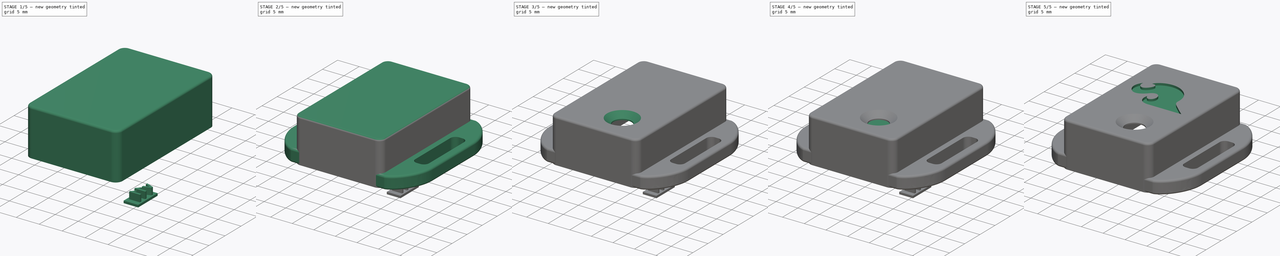
[diagram: build sequence overview — one tinted view per stage of 5, left to right]
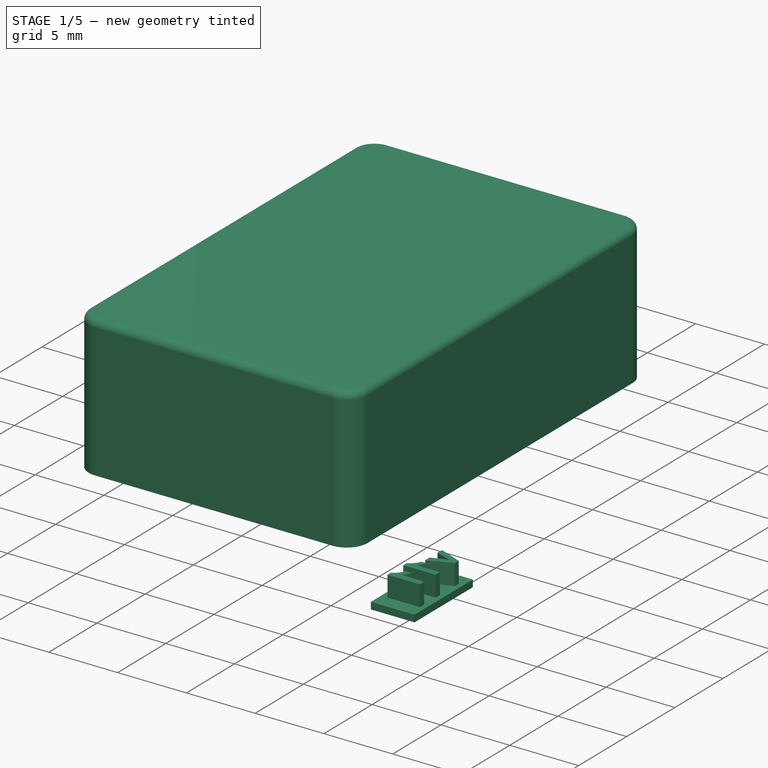
[diagram: stage 1 of 5 — iso view after this stage's code; geometry added in this stage tinted green]
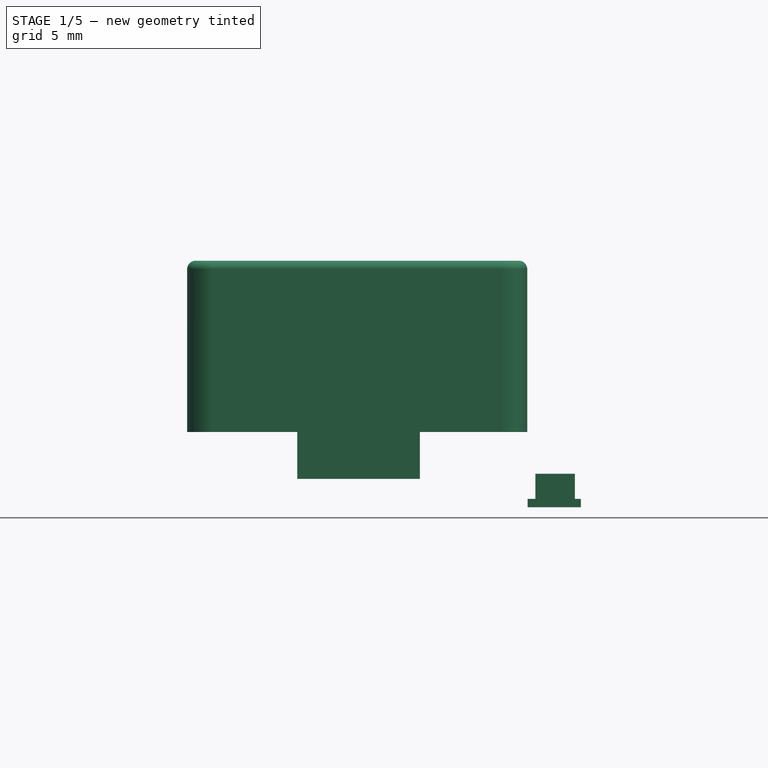
[diagram: stage 1 of 5 — front view after this stage's code; geometry added in this stage tinted green]
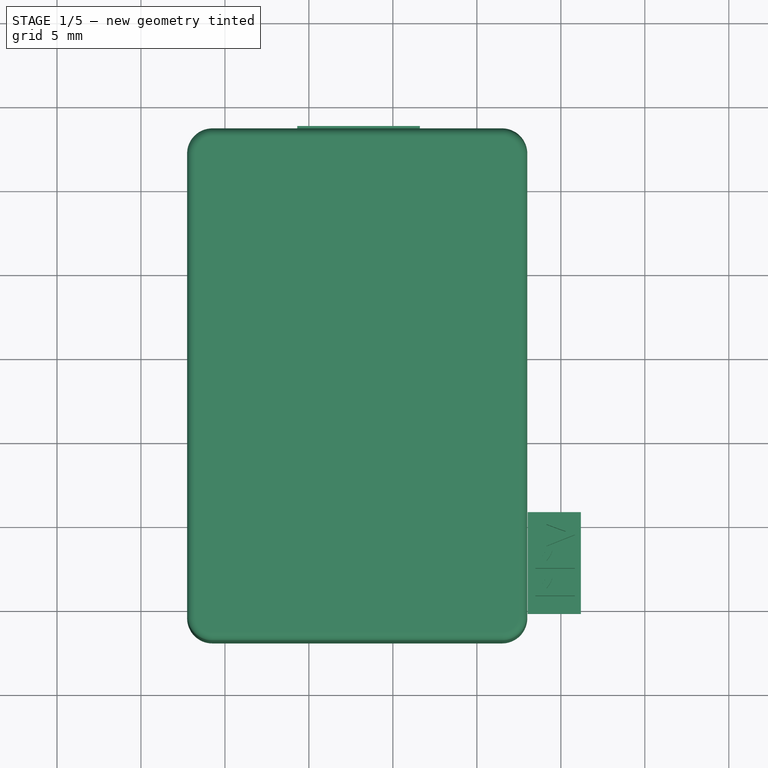
[diagram: stage 1 of 5 — top view after this stage's code; geometry added in this stage tinted green]
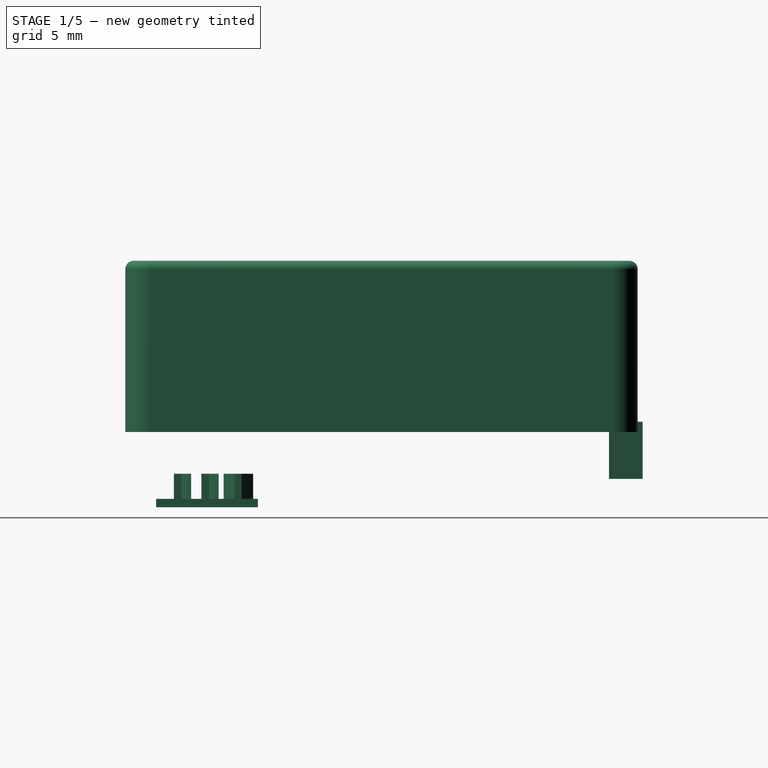
[diagram: stage 1 of 5 — right view after this stage's code; geometry added in this stage tinted green]
FCSTD DOCUMENT  (FreeCAD 0.21R33668 +26 (Git))
Label: HMV080_Enclosure_Outer_Shell
License: All rights reserved
LicenseURL: http://en.wikipedia.org/wiki/All_rights_reserved
objects: Part::FeaturePython×8, Part::Cut×8, Sketcher::SketchObject×3, PartDesign::Pad×3, PartDesign::Body×3, PartDesign::Fillet×1, Part::MultiFuse×1
note: 31 computed .brp shape members not serialized (recipe doc carries the construction recipe); baked Part::Feature solids carry a one-line shape summary decoded from their .brp

FEATURE [Sketcher::SketchObject] Sketch020
  FullyConstrained = true
  MapMode = 5
  Support = -> [XY_Plane018]
  expr: Constraints[21] = .Constraints.arc1
  expr: Constraints[22] = .Constraints.arc1
  expr: Constraints[23] = .Constraints.arc1
  sketch-geometry (12):
    g0: LineSegment StartX=-10.75 StartY=8.51 StartZ=0 EndX=6.5 EndY=8.51 EndZ=0
    g1: LineSegment StartX=8 StartY=7.01 StartZ=0 EndX=8 EndY=-20.49 EndZ=0
    g2: LineSegment StartX=6.5 StartY=-21.99 StartZ=0 EndX=-10.75 EndY=-21.99 EndZ=0
    g3: LineSegment StartX=-12.25 StartY=-20.49 StartZ=0 EndX=-12.25 EndY=7.01 EndZ=0
    g4: ArcOfCircle CenterX=-10.75 CenterY=7.01 CenterZ=0 NormalX=0 NormalY=0 NormalZ=1 AngleXU=0 Radius=1.5 StartAngle=1.5708 EndAngle=3.14159
    g5: GeomPoint X=-12.25 Y=8.51 Z=0
    g6: ArcOfCircle CenterX=6.5 CenterY=7.01 CenterZ=0 NormalX=0 NormalY=0 NormalZ=1 AngleXU=0 Radius=1.5 StartAngle=0 EndAngle=1.5708
    g7: GeomPoint X=8 Y=8.51 Z=0
    g8: ArcOfCircle CenterX=6.5 CenterY=-20.49 CenterZ=0 NormalX=0 NormalY=0 NormalZ=1 AngleXU=0 Radius=1.5 StartAngle=4.71239 EndAngle=6.28319
    g9: GeomPoint X=8 Y=-21.99 Z=0
    g10: ArcOfCircle CenterX=-10.75 CenterY=-20.49 CenterZ=0 NormalX=0 NormalY=0 NormalZ=1 AngleXU=0 Radius=1.5 StartAngle=3.14159 EndAngle=4.71239
    g11: GeomPoint X=-12.25 Y=-21.99 Z=0
  constraints (29):
    c: Horizontal(g0)
    c: Horizontal(g2)
    c: Vertical(g1)
    c: Vertical(g3)
    c: PointOnObject(g5,g0)
    c: PointOnObject(g5,g3)
    c: Tangent(g0,g4) = 1.5708
    c: Tangent(g3,g4) = 1.5708
    c: PointOnObject(g7,g0)
    c: PointOnObject(g7,g1)
    c: Tangent(g0,g6) = 1.5708
    c: Tangent(g1,g6) = 1.5708
    c: PointOnObject(g9,g1)
    c: PointOnObject(g9,g2)
    c: Tangent(g1,g8) = 1.5708
    c: Tangent(g2,g8) = 1.5708
    c: PointOnObject(g11,g2)
    c: PointOnObject(g11,g3)
    c: Tangent(g2,g10) = 1.5708
    c: Tangent(g3,g10) = 1.5708
    c: Diameter(g4) = 3  'arc1'
    c: Diameter(g6) = 3
    c: Diameter(g8) = 3
    c: Diameter(g10) = 3
    c: DistanceX(g-1,g1) = 8
    c: DistanceY(g-1,g7) = 8.51
    c: DistanceX(g5,g-1) = 12.25
    c: DistanceY(g9,g7) = 30.5
    c: DistanceX(g5,g7) = 20.25
FEATURE [PartDesign::Pad] Pad018
  Direction = (0,0,1)
  Length = 10.2
  Length2 = 10
  Profile = -> Sketch020
  ReferenceAxis = -> Sketch020 [N_Axis]
  Type = 0
FEATURE [PartDesign::Fillet] Fillet
  Base = -> Pad018 [Edge4,Edge7,Edge10,Edge13,Edge16,Edge19,Edge22,Edge24]
  BaseFeature = -> Pad018
  Radius = 0.5
  SupportTransform = false
  UseAllEdges = false
FEATURE [Part::FeaturePython] b_OS_Qwiic_Opening_cutaway_001_  label="OS_Qwiic_Opening_cutaway_001"  # a2plus imported part (geometry in sourceFile) (typed FeaturePython)
  Placement = pos=(-2.04176,8.80868,-2.78951) rot=(1,0,0;1.5708rad)
  a2p_Version = 0.4.67
  fixedPosition = false
  objectType = a2pPart
  sourceFile = .\OS_Qwiic_Opening_cutaway.FCStd
  subassemblyImport = false
  timeLastImport = 1.73645e+09
  updateColors = true
FEATURE [Part::FeaturePython] b_version_text_cutter_001_  label="version_text_cutter_001"  # a2plus imported part (geometry in sourceFile) (typed FeaturePython)
  Placement = pos=(10.8366,-14.3639,-3.98046) rot=(0.707107,-0.707107,0;3.14159rad)
  a2p_Version = 0.4.67
  fixedPosition = false
  objectType = a2pPart
  sourceFile = .\version_text_cutter.FCStd
  subassemblyImport = false
  timeLastImport = 1.73922e+09
  updateColors = true
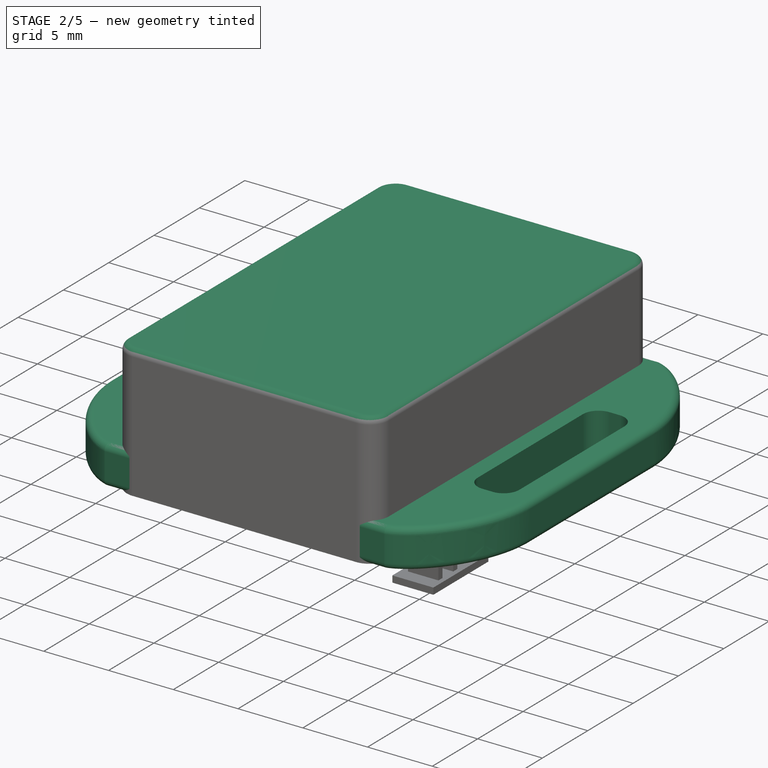
[diagram: stage 2 of 5 — iso view after this stage's code; geometry added in this stage tinted green]
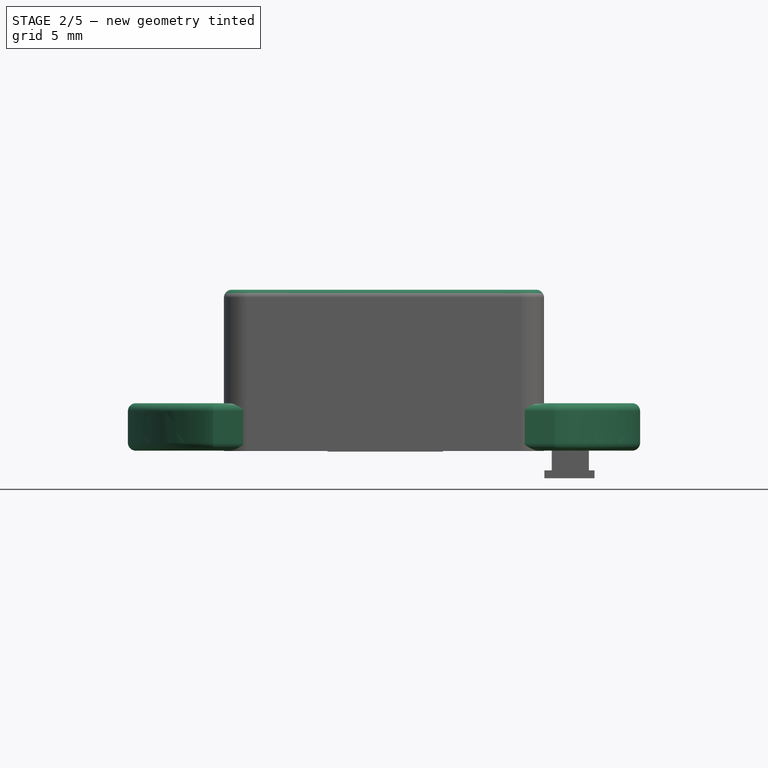
[diagram: stage 2 of 5 — front view after this stage's code; geometry added in this stage tinted green]
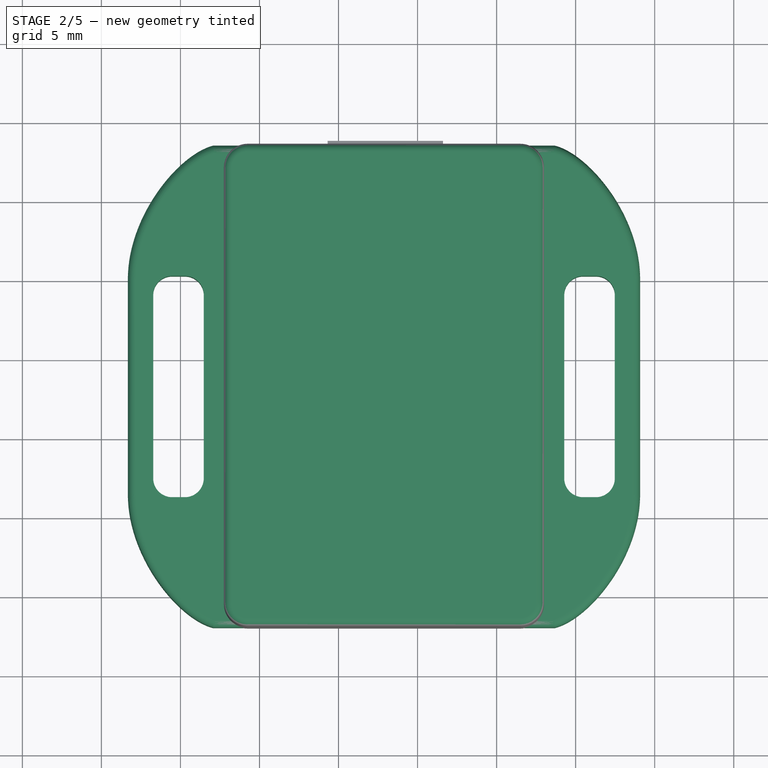
[diagram: stage 2 of 5 — top view after this stage's code; geometry added in this stage tinted green]
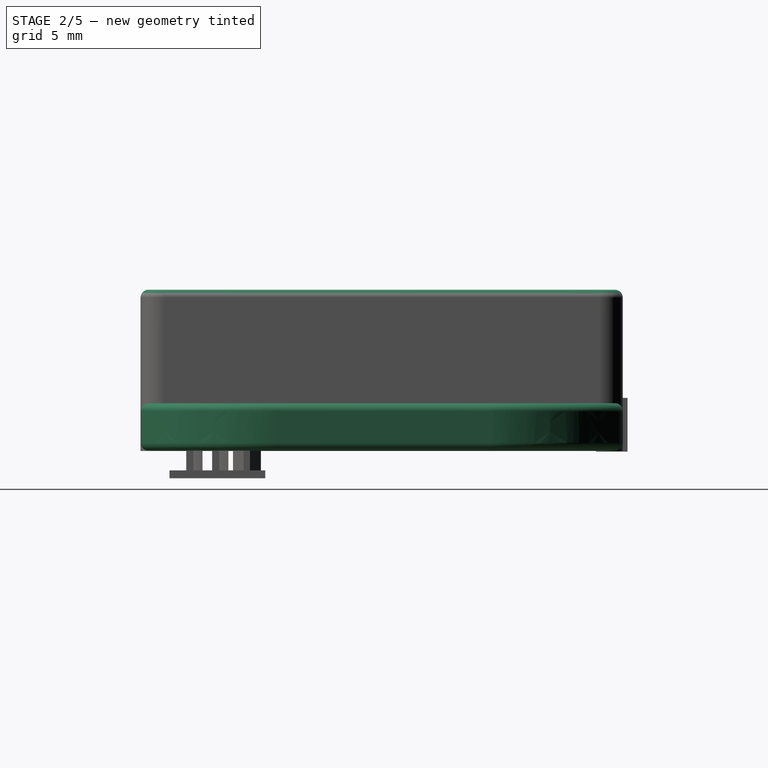
[diagram: stage 2 of 5 — right view after this stage's code; geometry added in this stage tinted green]
FEATURE [Sketcher::SketchObject] Sketch021
  FullyConstrained = true
  MapMode = 5
  Support = -> [XY_Plane019]
  expr: Constraints[24] = .Constraints.arc1
  expr: Constraints[25] = .Constraints.arc1
  expr: Constraints[26] = .Constraints.arc1
  sketch-geometry (12):
    g0: LineSegment StartX=-9.55 StartY=7.28935 StartZ=0 EndX=5.35 EndY=7.28935 EndZ=0
    g1: LineSegment StartX=6.7 StartY=5.93935 StartZ=0 EndX=6.7 EndY=-19.3007 EndZ=0
    g2: LineSegment StartX=5.35 StartY=-20.6507 StartZ=0 EndX=-9.55 EndY=-20.6507 EndZ=0
    g3: LineSegment StartX=-10.9 StartY=-19.3007 StartZ=0 EndX=-10.9 EndY=5.93935 EndZ=0
    g4: ArcOfCircle CenterX=-9.55 CenterY=5.93935 CenterZ=0 NormalX=0 NormalY=0 NormalZ=1 AngleXU=0 Radius=1.35 StartAngle=1.5708 EndAngle=3.14159
    g5: GeomPoint X=-10.9 Y=7.28935 Z=0
    g6: ArcOfCircle CenterX=5.35 CenterY=5.93935 CenterZ=0 NormalX=0 NormalY=0 NormalZ=1 AngleXU=0 Radius=1.35 StartAngle=0 EndAngle=1.5708
    g7: GeomPoint X=6.7 Y=7.28935 Z=0
    g8: ArcOfCircle CenterX=5.35 CenterY=-19.3007 CenterZ=0 NormalX=0 NormalY=0 NormalZ=1 AngleXU=0 Radius=1.35 StartAngle=4.71239 EndAngle=6.28319
    g9: GeomPoint X=6.7 Y=-20.6507 Z=0
    g10: ArcOfCircle CenterX=-9.55 CenterY=-19.3007 CenterZ=0 NormalX=0 NormalY=0 NormalZ=1 AngleXU=0 Radius=1.35 StartAngle=3.14159 EndAngle=4.71239
    g11: GeomPoint X=-10.9 Y=-20.6507 Z=0
  constraints (28):
    c: Horizontal(g0)
    c: Horizontal(g2)
    c: Vertical(g1)
    c: Vertical(g3)
    c: DistanceX(g5,g7) = 17.6
    c: DistanceX(g5,g-1) = 10.9
    c: DistanceY(g5,g-1) = -7.28935
    c: PointOnObject(g5,g0)
    c: PointOnObject(g5,g3)
    c: Tangent(g0,g4) = 1.5708
    c: Tangent(g3,g4) = 1.5708
    c: PointOnObject(g7,g0)
    c: PointOnObject(g7,g1)
    c: Tangent(g0,g6) = 1.5708
    c: Tangent(g1,g6) = 1.5708
    c: PointOnObject(g9,g1)
    c: PointOnObject(g9,g2)
    c: Tangent(g1,g8) = 1.5708
    c: Tangent(g2,g8) = 1.5708
    c: PointOnObject(g11,g2)
    c: PointOnObject(g11,g3)
    c: Tangent(g2,g10) = 1.5708
    c: Tangent(g3,g10) = 1.5708
    c: Diameter(g4) = 2.7  'arc1'
    c: Diameter(g6) = 2.7
    c: Diameter(g8) = 2.7
    c: Diameter(g10) = 2.7
    c: DistanceY(g11,g5) = 27.94
FEATURE [PartDesign::Pad] Pad019
  Direction = (0,0,1)
  Length = 7.5
  Length2 = 10
  Profile = -> Sketch021
  ReferenceAxis = -> Sketch021 [N_Axis]
  Type = 0
FEATURE [PartDesign::Body] Body019  label="outer_shell_cavity"
  Group = -> [Sketch021,Pad019]
  Origin = -> Origin019
  Placement = pos=(0,0,-2.76) rot=(0,0,1;0rad)
  Tip = -> Pad019
FEATURE [Part::FeaturePython] b_HMV080_Mounting_Flange_001_  label="HMV080_Mounting_Flange_001"  # a2plus imported part (geometry in sourceFile) (typed FeaturePython)
  Placement = pos=(7.67644,-6.73,-2.73084) rot=(0,0,-1;1.5708rad)
  a2p_Version = 0.4.67
  fixedPosition = false
  objectType = a2pPart
  sourceFile = .\HMV080_Mounting_Flange.FCStd
  subassemblyImport = false
  timeLastImport = 1.73836e+09
  updateColors = true
FEATURE [Part::FeaturePython] b_HMV080_Mounting_Flange_001_001  label="HMV080_Mounting_Flange_002"  # a2plus imported part (geometry in sourceFile) (typed FeaturePython)
  Placement = pos=(-11.9236,-6.73,-2.73084) rot=(0,0,1;1.5708rad)
  a2p_Version = 0.4.67
  fixedPosition = false
  objectType = a2pPart
  sourceFile = .\HMV080_Mounting_Flange.FCStd
  subassemblyImport = false
  timeLastImport = 1.73836e+09
  updateColors = true
FEATURE [PartDesign::Body] Body018  label="outer_shell001"
  Group = -> [Sketch020,Pad018,Fillet]
  Origin = -> Origin018
  Placement = pos=(0,0,-2.75) rot=(0,0,1;0rad)
  Tip = -> Fillet
FEATURE [Part::Cut] Cut004  label="OS_Cut_Cavity"
  Base = -> Body018
  Tool = -> Body019
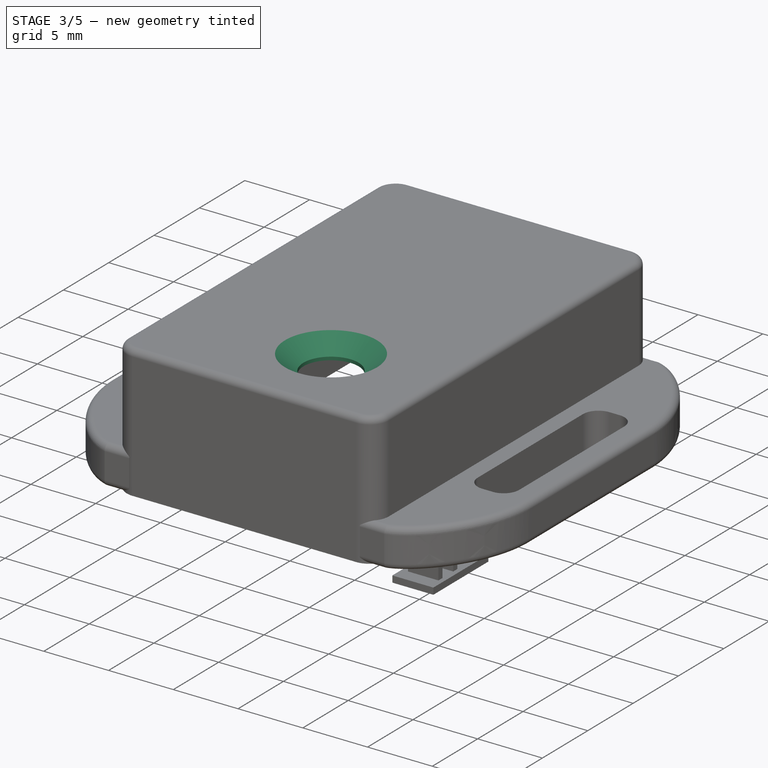
[diagram: stage 3 of 5 — iso view after this stage's code; geometry added in this stage tinted green]
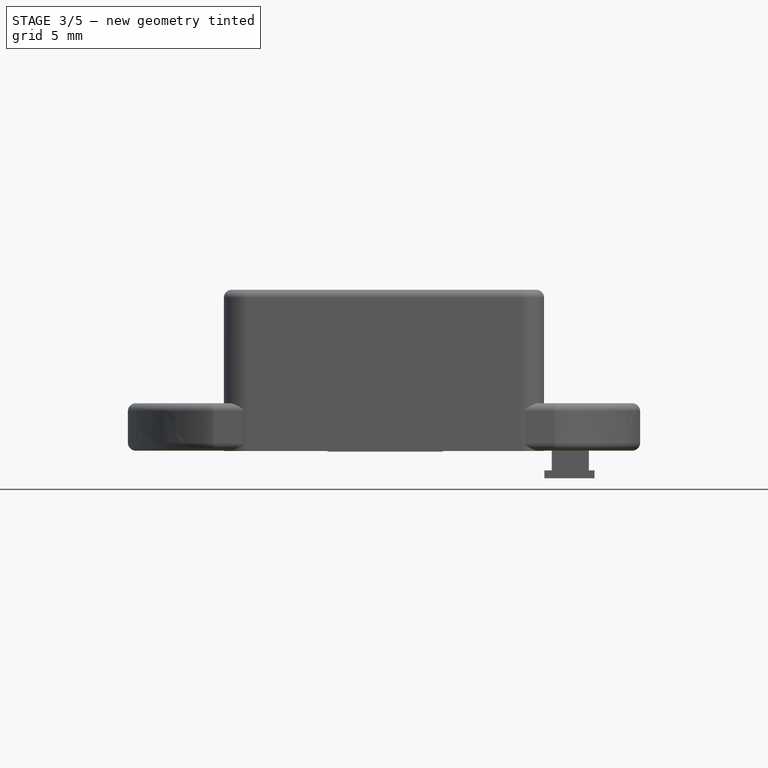
[diagram: stage 3 of 5 — front view after this stage's code; geometry added in this stage tinted green]
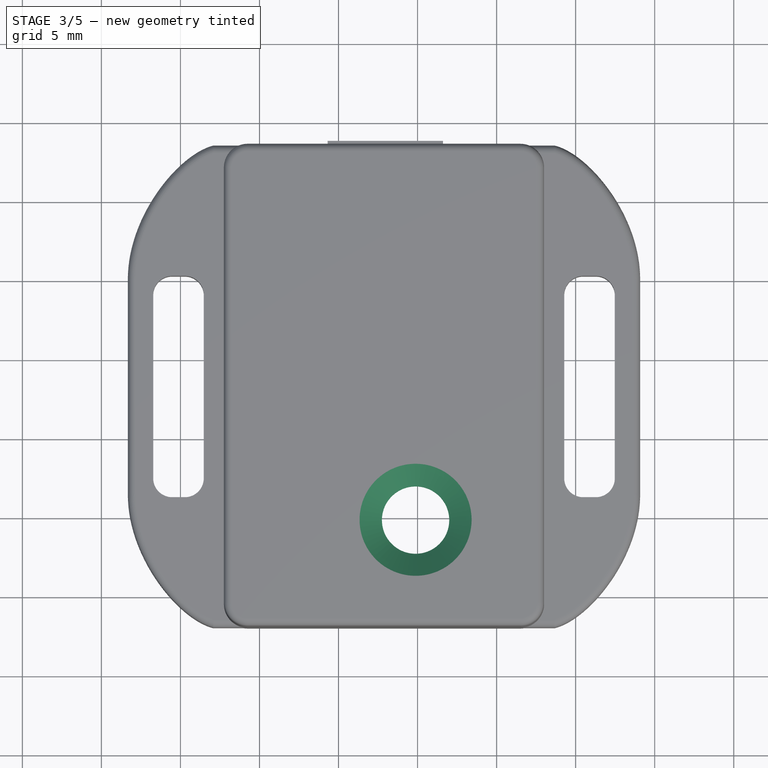
[diagram: stage 3 of 5 — top view after this stage's code; geometry added in this stage tinted green]
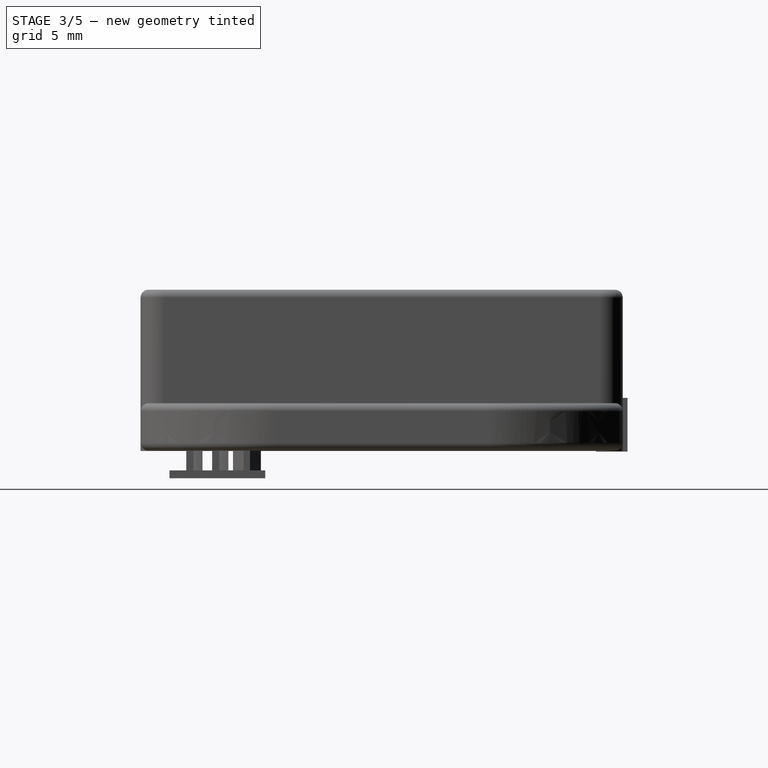
[diagram: stage 3 of 5 — right view after this stage's code; geometry added in this stage tinted green]
FEATURE [Part::FeaturePython] b_snap_fit_pin_hole_001_001  label="snap-fit_pin-hole_002"  # a2plus imported part (geometry in sourceFile) (typed FeaturePython)
  Placement = pos=(6.6951,-7.32565,-1.3804) rot=(0,0,-1;1.5708rad)
  a2p_Version = 0.4.67
  fixedPosition = false
  objectType = a2pPart
  sourceFile = .\snap-fit_pin-hole.FCStd
  subassemblyImport = false
  timeLastImport = 1.73713e+09
  updateColors = true
FEATURE [Part::FeaturePython] b_sensor_opening_cut_OS_001_  label="sensor_opening_cut_OS_001"  # a2plus imported part (geometry in sourceFile) (typed FeaturePython)
  Placement = pos=(-0.126435,-15.2847,4.74547) rot=(0,0,1;0rad)
  a2p_Version = 0.4.67
  fixedPosition = false
  objectType = a2pPart
  sourceFile = .\sensor_opening_cut_OS.FCStd
  subassemblyImport = false
  timeLastImport = 1.73922e+09
  updateColors = true
FEATURE [Part::MultiFuse] Fusion  label="OS_Fusion_Flanges"
  Shapes = -> [b_HMV080_Mounting_Flange_001_001,b_HMV080_Mounting_Flange_001_,Cut004]
FEATURE [Part::Cut] Cut016  label="OS_Cut_opening"
  Base = -> Fusion
  Tool = -> b_sensor_opening_cut_OS_001_
FEATURE [Part::Cut] Cut017  label="OS_Cut_snap_hole_1"
  Base = -> Cut016
  Tool = -> b_snap_fit_pin_hole_001_001
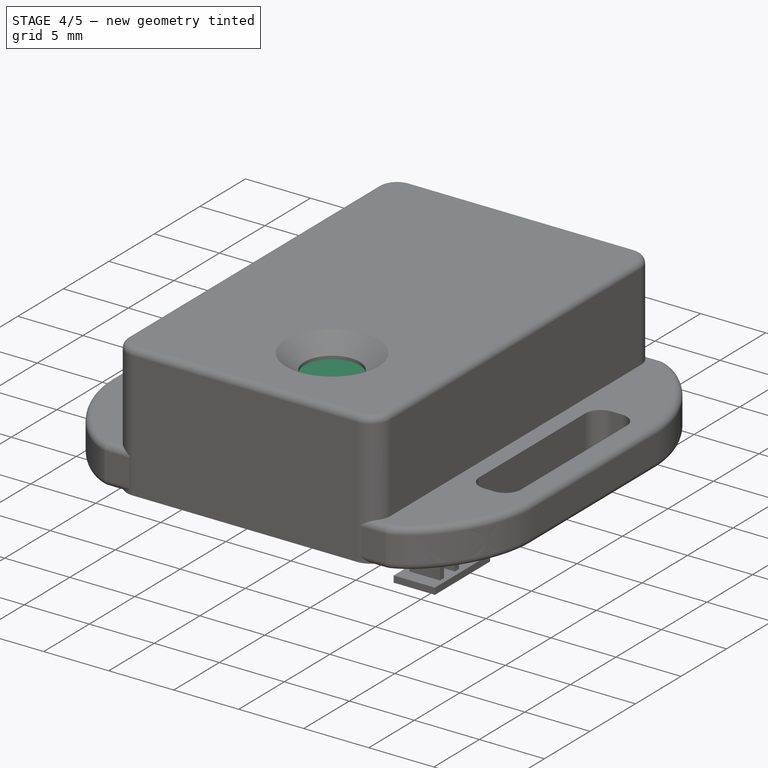
[diagram: stage 4 of 5 — iso view after this stage's code; geometry added in this stage tinted green]
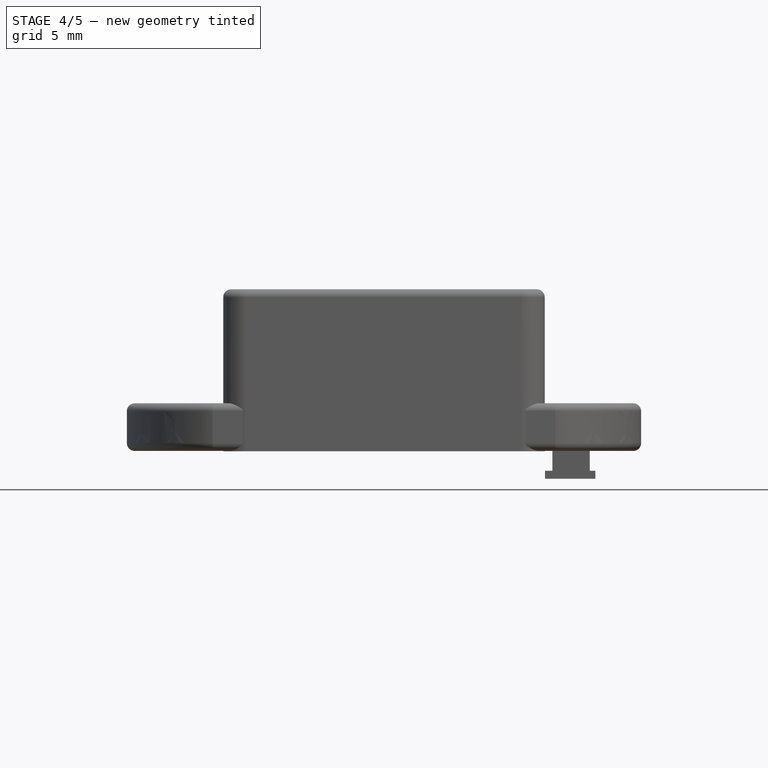
[diagram: stage 4 of 5 — front view after this stage's code; geometry added in this stage tinted green]
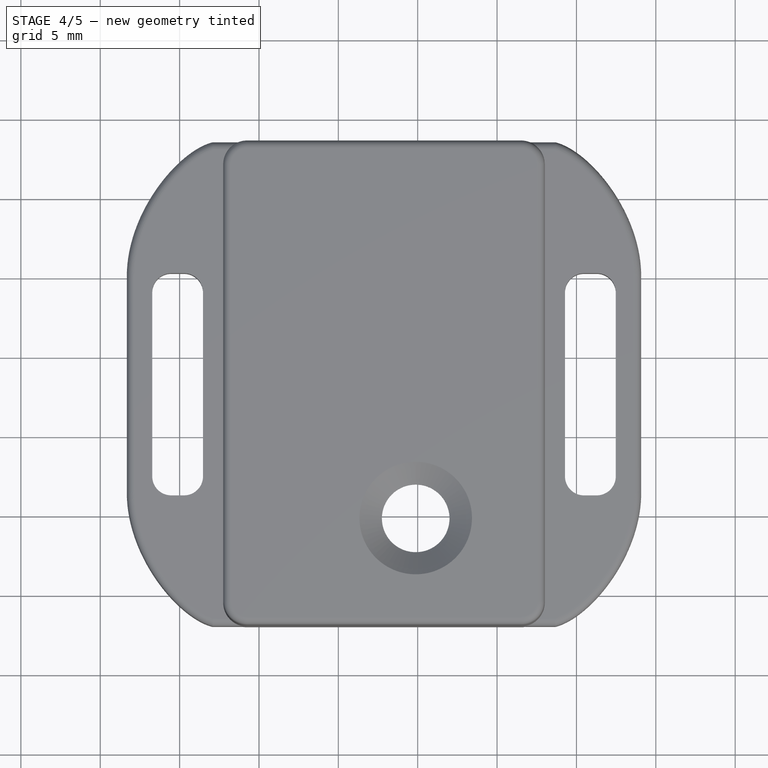
[diagram: stage 4 of 5 — top view after this stage's code; geometry added in this stage tinted green]
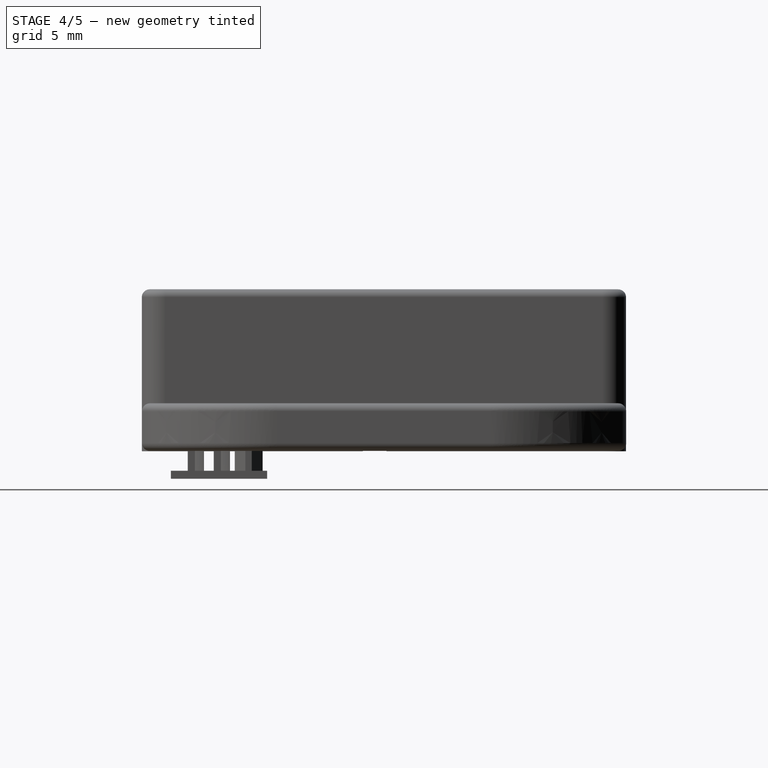
[diagram: stage 4 of 5 — right view after this stage's code; geometry added in this stage tinted green]
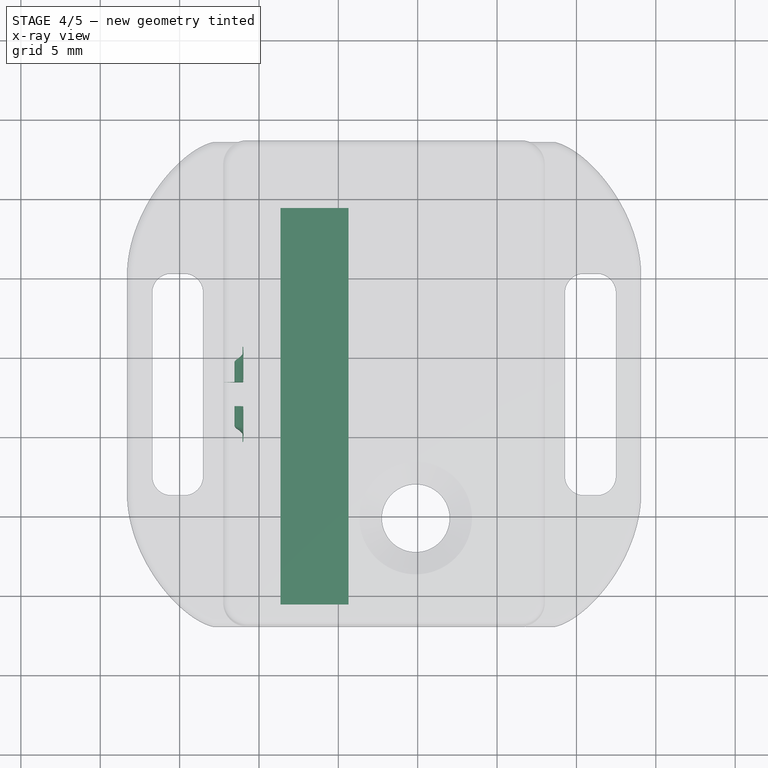
[diagram: stage 4 of 5 — x-ray composite at the top view; earlier geometry ghosted, this stage's added geometry solid]
FEATURE [Part::FeaturePython] b_snap_fit_pin_hole_001_002  label="snap-fit_pin-hole_003"  # a2plus imported part (geometry in sourceFile) (typed FeaturePython)
  Placement = pos=(-10.8949,-7.32565,-1.3804) rot=(0,0,1;1.5708rad)
  a2p_Version = 0.4.67
  fixedPosition = false
  objectType = a2pPart
  sourceFile = .\snap-fit_pin-hole.FCStd
  subassemblyImport = false
  timeLastImport = 1.73713e+09
  updateColors = true
FEATURE [Part::Cut] Cut018  label="OS_Cut_snap_hole_2"
  Base = -> Cut017
  Tool = -> b_snap_fit_pin_hole_001_002
FEATURE [Sketcher::SketchObject] Sketch
  FullyConstrained = true
  MapMode = 5
  Support = -> [XY_Plane]
  sketch-geometry (5):
    g0: LineSegment StartX=-4.35 StartY=-20.64 StartZ=0 EndX=-8.65 EndY=-20.64 EndZ=0
    g1: LineSegment StartX=-8.65 StartY=-20.64 StartZ=0 EndX=-8.65 EndY=4.36 EndZ=0
    g2: LineSegment StartX=-8.65 StartY=4.36 StartZ=0 EndX=-4.35 EndY=4.36 EndZ=0
    g3: LineSegment StartX=-4.35 StartY=4.36 StartZ=0 EndX=-4.35 EndY=-20.64 EndZ=0
    g4: GeomPoint X=-6.5 Y=-20.64 Z=0
  constraints (13):
    c: Coincident(g0,g1)
    c: Coincident(g1,g2)
    c: Coincident(g2,g3)
    c: Coincident(g3,g0)
    c: Horizontal(g0)
    c: Horizontal(g2)
    c: Vertical(g1)
    c: Vertical(g3)
    c: Symmetric(g0,g0,g4)
    c: DistanceX(g0,g0) = 4.3
    c: DistanceY(g1,g1) = 25
    c: DistanceX(g4) = -6.5
    c: DistanceY(g4) = -20.64
FEATURE [PartDesign::Pad] Pad
  Direction = (0,0,1)
  Length = 1.26
  Length2 = 10
  Profile = -> Sketch
  ReferenceAxis = -> Sketch [N_Axis]
  Type = 0
FEATURE [Part::Cut] Cut
  Base = -> Cut018
  Tool = -> b_OS_Qwiic_Opening_cutaway_001_
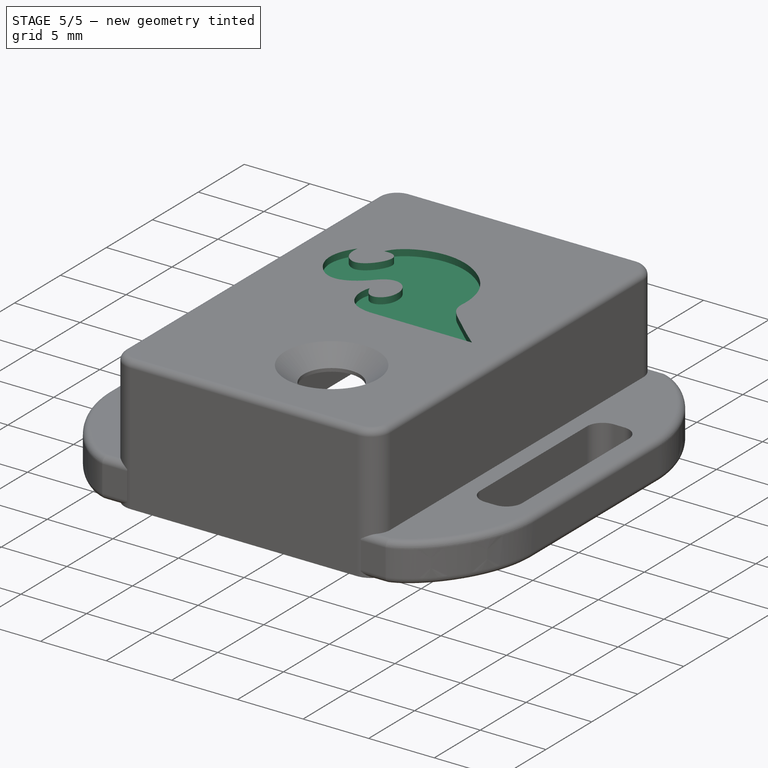
[diagram: stage 5 of 5 — iso view after this stage's code; geometry added in this stage tinted green]
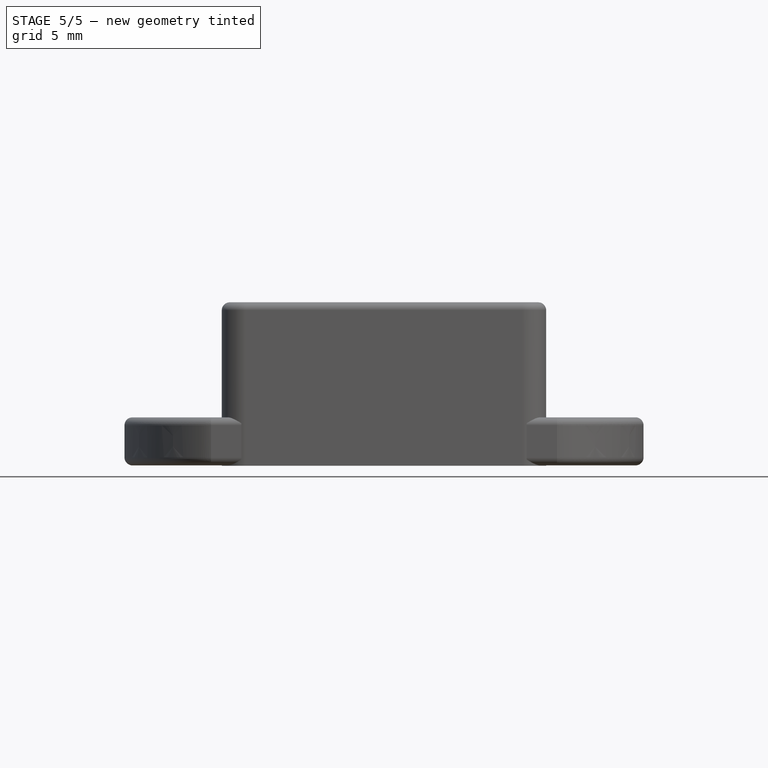
[diagram: stage 5 of 5 — front view after this stage's code; geometry added in this stage tinted green]
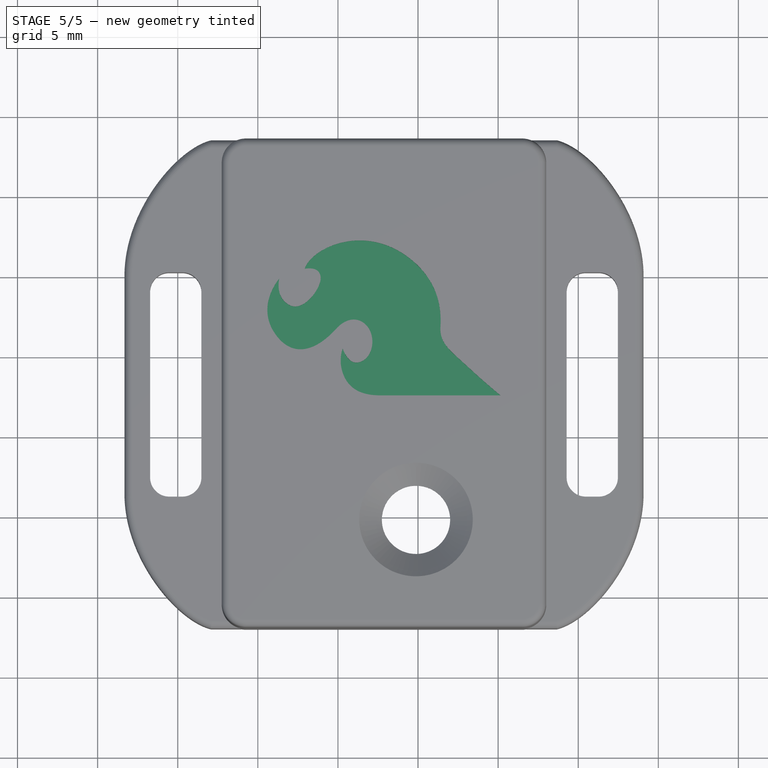
[diagram: stage 5 of 5 — top view after this stage's code; geometry added in this stage tinted green]
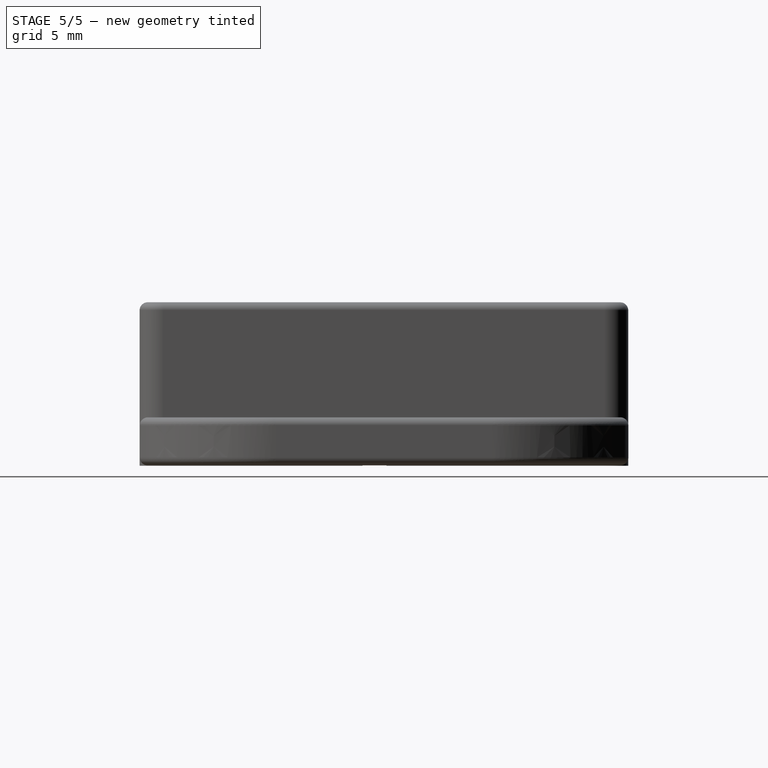
[diagram: stage 5 of 5 — right view after this stage's code; geometry added in this stage tinted green]
FEATURE [PartDesign::Body] Body  label="Header_Slot_Thickener_Cut"
  Group = -> [Sketch,Pad]
  Origin = -> Origin
  Placement = pos=(0,0,4.72) rot=(0,0,1;0rad)
  Tip = -> Pad
FEATURE [Part::FeaturePython] b_sfe_flame_15mm_001_  label="sfe_flame_15mm_001"  # a2plus imported part (geometry in sourceFile) (typed FeaturePython)
  Placement = pos=(-2.05,-3.13,7.96) rot=(0,0,1;1.5708rad)
  a2p_Version = 0.4.67
  fixedPosition = true
  objectType = a2pPart
  sourceFile = .\sfe_flame_15mm.FCStd
  subassemblyImport = false
  timeLastImport = 1.73836e+09
  updateColors = true
FEATURE [Part::Cut] Cut019
  Base = -> Cut
  Tool = -> Body
FEATURE [Part::Cut] Cut020
  Base = -> Cut019
  Tool = -> b_sfe_flame_15mm_001_
FEATURE [Part::Cut] Cut021
  Base = -> Cut020
  Tool = -> b_version_text_cutter_001_
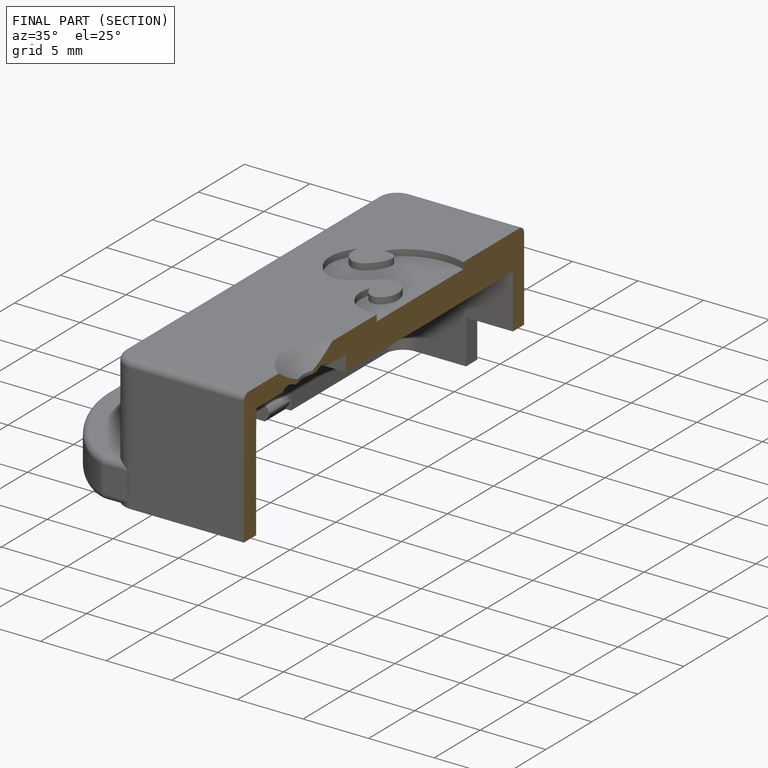
[diagram: finished part — half-section view (interior)]
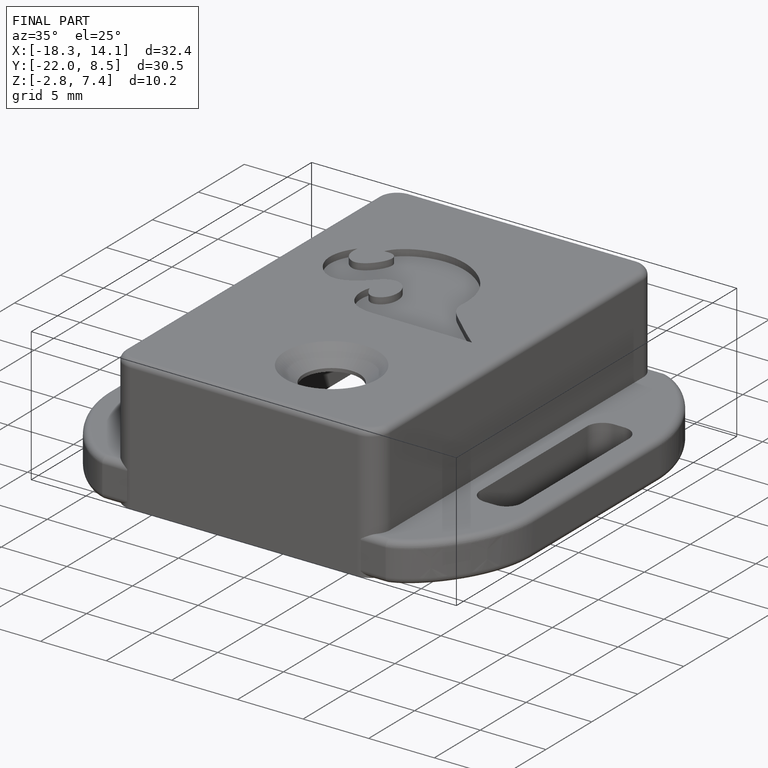
[diagram: finished part — iso view with bounding-box wireframe]
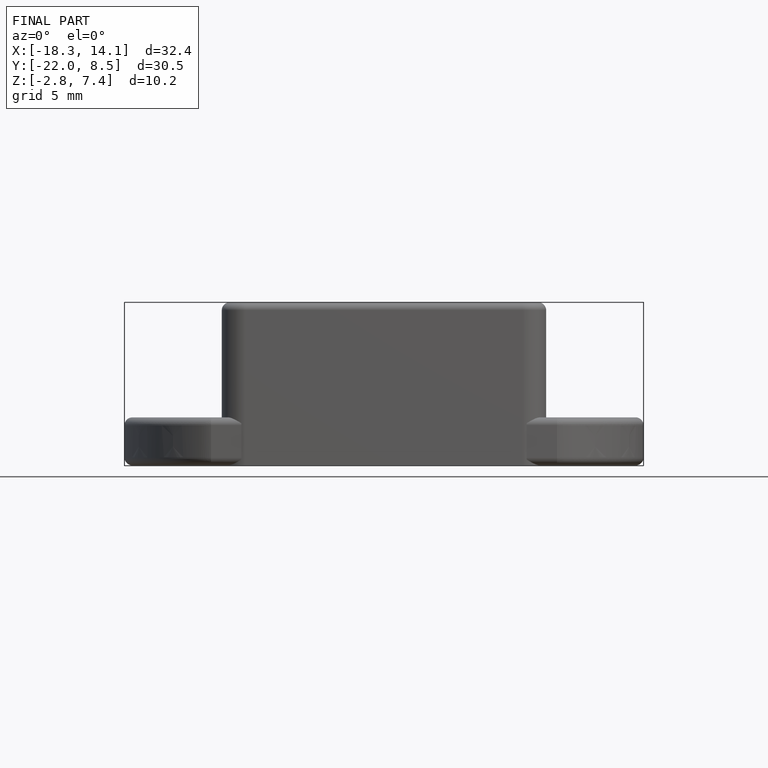
[diagram: finished part — front view with bounding-box wireframe]
